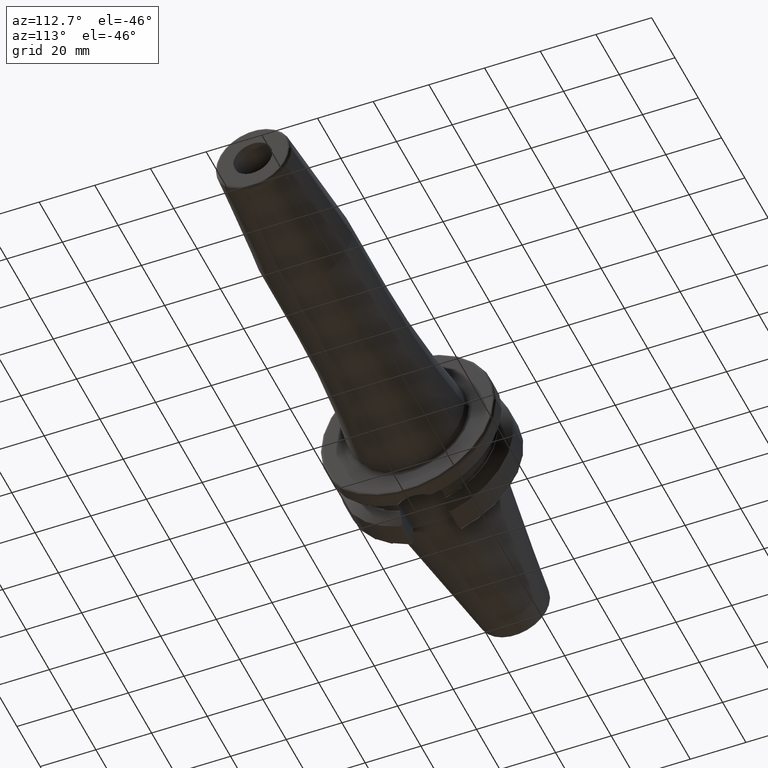
[diagram: clean part render]
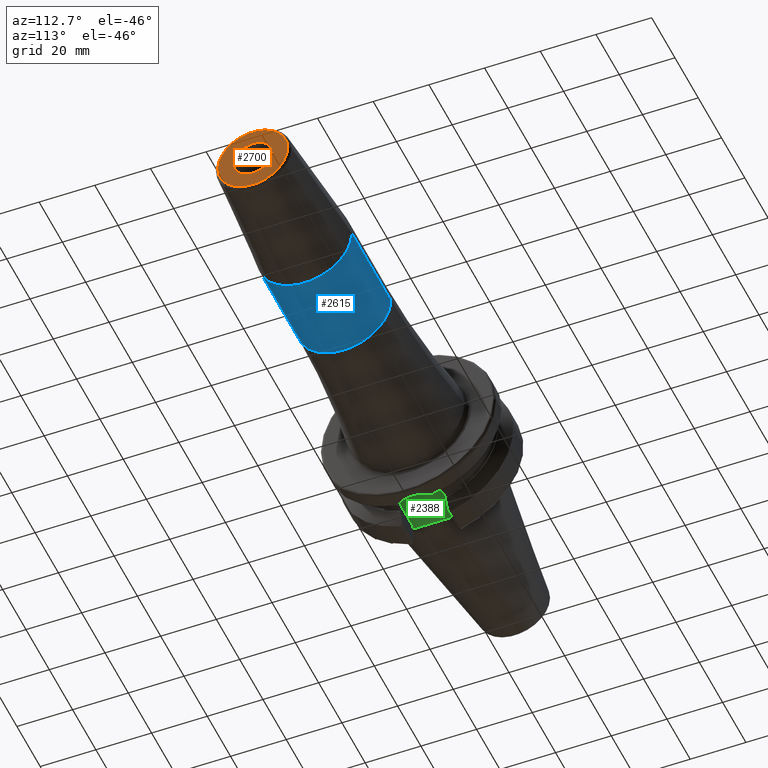
[diagram: same view with three faces highlighted in distinct colors, each labeled with its STEP entity id]
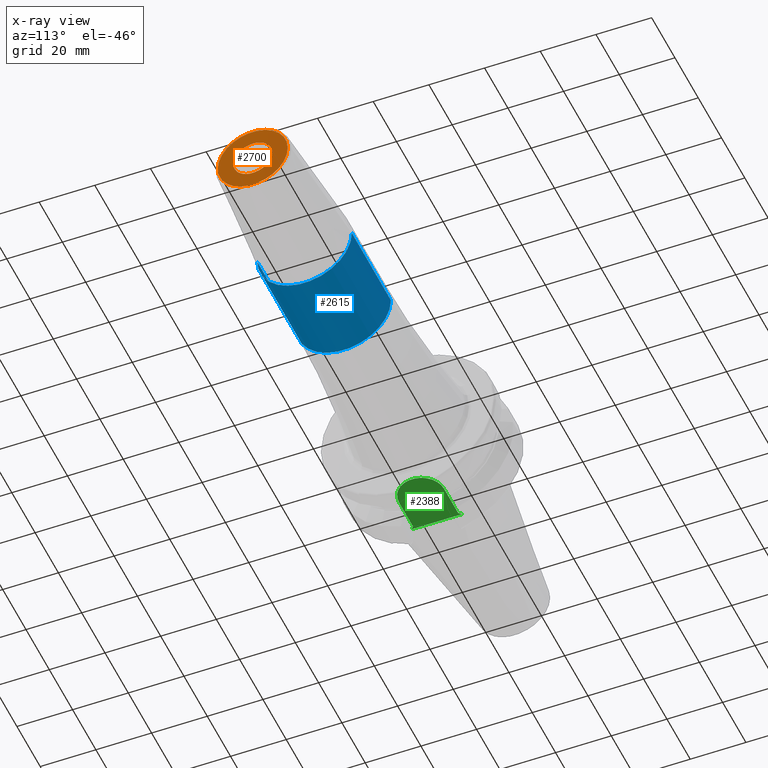
[diagram: x-ray of the same camera — body ghosted, the three highlighted faces saturated]
A machine part, auxiliary view with three faces highlighted in distinct colors.
The next image is the same camera in x-ray (body ghosted, the three faces saturated) — at least one of them is partly hidden behind the body in this view.
Their STEP definitions:

[orange] entity #2700 — the highlighted planar face has unit normal (1, 0, 0).
#932=CARTESIAN_POINT('',(1.6E2,0.E0,0.E0));
#933=DIRECTION('',(-1.E0,0.E0,0.E0));
#934=DIRECTION('',(0.E0,1.E0,0.E0));
#935=AXIS2_PLACEMENT_3D('',#932,#933,#934);
#937=CARTESIAN_POINT('',(1.6E2,0.E0,0.E0));
#938=DIRECTION('',(-1.E0,0.E0,0.E0));
#939=DIRECTION('',(0.E0,-1.E0,0.E0));
#940=AXIS2_PLACEMENT_3D('',#937,#938,#939);
#942=CARTESIAN_POINT('',(1.6E2,0.E0,0.E0));
#943=DIRECTION('',(1.E0,0.E0,0.E0));
#944=DIRECTION('',(0.E0,1.E0,0.E0));
#945=AXIS2_PLACEMENT_3D('',#942,#943,#944);
#947=CARTESIAN_POINT('',(1.6E2,0.E0,0.E0));
#948=DIRECTION('',(1.E0,0.E0,0.E0));
#949=DIRECTION('',(0.E0,-1.E0,0.E0));
#950=AXIS2_PLACEMENT_3D('',#947,#948,#949);
#1417=CARTESIAN_POINT('',(1.6E2,7.E0,0.E0));
#1418=VERTEX_POINT('',#1417);
#1419=CARTESIAN_POINT('',(1.6E2,-7.E0,0.E0));
#1420=VERTEX_POINT('',#1419);
#1429=CARTESIAN_POINT('',(1.6E2,1.257560950834E1,0.E0));
#1430=CARTESIAN_POINT('',(1.6E2,-1.257560950834E1,0.E0));
#1431=VERTEX_POINT('',#1429);
#1432=VERTEX_POINT('',#1430);
#2685=CARTESIAN_POINT('',(1.6E2,0.E0,0.E0));
#2686=DIRECTION('',(1.E0,0.E0,0.E0));
#2687=DIRECTION('',(0.E0,-1.E0,0.E0));
#2688=AXIS2_PLACEMENT_3D('',#2685,#2686,#2687);
#2689=PLANE('',#2688);
#2690=ORIENTED_EDGE('',*,*,#2667,.T.);
#2691=ORIENTED_EDGE('',*,*,#2652,.T.);
#2692=EDGE_LOOP('',(#2690,#2691));
#2693=FACE_OUTER_BOUND('',#2692,.F.);
#2695=ORIENTED_EDGE('',*,*,#2694,.T.);
#2697=ORIENTED_EDGE('',*,*,#2696,.T.);
#2698=EDGE_LOOP('',(#2695,#2697));
#2699=FACE_BOUND('',#2698,.F.);
#2700=ADVANCED_FACE('',(#2693,#2699),#2689,.T.);
#936=CIRCLE('',#935,1.257560950834E1);
#941=CIRCLE('',#940,1.257560950834E1);
#946=CIRCLE('',#945,7.E0);
#951=CIRCLE('',#950,7.E0);
#2652=EDGE_CURVE('',#1432,#1431,#941,.T.);
#2667=EDGE_CURVE('',#1431,#1432,#936,.T.);
#2694=EDGE_CURVE('',#1418,#1420,#946,.T.);
#2696=EDGE_CURVE('',#1420,#1418,#951,.T.);

[blue] entity #2615 — the highlighted cylindrical surface (partial cylindrical patch) has radius 17 mm, axis along (1, 0, 0).
#876=CARTESIAN_POINT('',(8.2E1,0.E0,0.E0));
#877=DIRECTION('',(1.E0,0.E0,0.E0));
#878=DIRECTION('',(0.E0,-1.E0,0.E0));
#879=AXIS2_PLACEMENT_3D('',#876,#877,#878);
#881=DIRECTION('',(-1.E0,0.E0,0.E0));
#882=VECTOR('',#881,3.352828342339E1);
#883=CARTESIAN_POINT('',(1.155282834234E2,-1.7E1,0.E0));
#884=LINE('',#883,#882);
#885=CARTESIAN_POINT('',(1.155282834234E2,0.E0,0.E0));
#886=DIRECTION('',(-1.E0,0.E0,0.E0));
#887=DIRECTION('',(0.E0,1.E0,0.E0));
#888=AXIS2_PLACEMENT_3D('',#885,#886,#887);
#890=DIRECTION('',(-1.E0,0.E0,0.E0));
#891=VECTOR('',#890,3.352828342339E1);
#892=CARTESIAN_POINT('',(1.155282834234E2,1.7E1,0.E0));
#893=LINE('',#892,#891);
#1421=CARTESIAN_POINT('',(1.155282834234E2,1.7E1,0.E0));
#1422=CARTESIAN_POINT('',(1.155282834234E2,-1.7E1,0.E0));
#1423=VERTEX_POINT('',#1421);
#1424=VERTEX_POINT('',#1422);
#1433=CARTESIAN_POINT('',(8.2E1,1.7E1,0.E0));
#1434=CARTESIAN_POINT('',(8.2E1,-1.7E1,0.E0));
#1435=VERTEX_POINT('',#1433);
#1436=VERTEX_POINT('',#1434);
#2601=CARTESIAN_POINT('',(2.035E1,0.E0,0.E0));
#2602=DIRECTION('',(1.E0,0.E0,0.E0));
#2603=DIRECTION('',(0.E0,-1.E0,0.E0));
#2604=AXIS2_PLACEMENT_3D('',#2601,#2602,#2603);
#2605=CYLINDRICAL_SURFACE('',#2604,1.7E1);
#2606=ORIENTED_EDGE('',*,*,#2595,.F.);
#2608=ORIENTED_EDGE('',*,*,#2607,.F.);
#2610=ORIENTED_EDGE('',*,*,#2609,.F.);
#2612=ORIENTED_EDGE('',*,*,#2611,.T.);
#2613=EDGE_LOOP('',(#2606,#2608,#2610,#2612));
#2614=FACE_OUTER_BOUND('',#2613,.F.);
#2615=ADVANCED_FACE('',(#2614),#2605,.T.);
#880=CIRCLE('',#879,1.7E1);
#889=CIRCLE('',#888,1.7E1);
#2595=EDGE_CURVE('',#1436,#1435,#880,.T.);
#2607=EDGE_CURVE('',#1424,#1436,#884,.T.);
#2609=EDGE_CURVE('',#1423,#1424,#889,.T.);
#2611=EDGE_CURVE('',#1423,#1435,#893,.T.);

[green] entity #2388 — the highlighted planar face has unit normal (0, 0, 1).
#116=CARTESIAN_POINT('',(2.E0,4.388977671395E0,-2.245E1));
#117=CARTESIAN_POINT('',(2.E0,3.970864393606E0,-2.245E1));
#118=CARTESIAN_POINT('',(1.981114905491E0,3.134790252882E0,-2.245E1));
#119=CARTESIAN_POINT('',(1.935909306664E0,1.881114481695E0,-2.245E1));
#120=CARTESIAN_POINT('',(1.903922826087E0,6.271978198695E-1,-2.245E1));
#121=CARTESIAN_POINT('',(1.903921553157E0,-6.271174199701E-1,-2.245E1));
#122=CARTESIAN_POINT('',(1.935907277484E0,-1.881058975901E0,-2.245E1));
#123=CARTESIAN_POINT('',(1.981114329553E0,-3.134769380598E0,-2.245E1));
#124=CARTESIAN_POINT('',(2.E0,-3.970858027266E0,-2.245E1));
#125=CARTESIAN_POINT('',(2.E0,-4.388977671395E0,-2.245E1));
#147=DIRECTION('',(7.071067811865E-1,-7.071067811865E-1,0.E0));
#148=VECTOR('',#147,1.414213562373E0);
#149=CARTESIAN_POINT('',(2.E0,9.095E0,-2.245E1));
#150=LINE('',#149,#148);
#738=DIRECTION('',(-7.071067811865E-1,-7.071067811865E-1,0.E0));
#739=VECTOR('',#738,1.414213562373E0);
#740=CARTESIAN_POINT('',(3.E0,-8.095E0,-2.245E1));
#741=LINE('',#740,#739);
#742=DIRECTION('',(-1.E0,0.E0,0.E0));
#743=VECTOR('',#742,1.2155E1);
#744=CARTESIAN_POINT('',(1.5155E1,8.095E0,-2.245E1));
#745=LINE('',#744,#743);
#746=DIRECTION('',(0.E0,-1.E0,0.E0));
#747=VECTOR('',#746,4.706022328605E0);
#748=CARTESIAN_POINT('',(2.E0,9.095E0,-2.245E1));
#749=LINE('',#748,#747);
#750=DIRECTION('',(0.E0,-1.E0,0.E0));
#751=VECTOR('',#750,4.706022328605E0);
#752=CARTESIAN_POINT('',(2.E0,-4.388977671395E0,-2.245E1));
#753=LINE('',#752,#751);
#754=DIRECTION('',(1.E0,0.E0,0.E0));
#755=VECTOR('',#754,1.2155E1);
#756=CARTESIAN_POINT('',(3.E0,-8.095E0,-2.245E1));
#757=LINE('',#756,#755);
#758=CARTESIAN_POINT('',(1.5155E1,0.E0,-2.245E1));
#759=DIRECTION('',(0.E0,0.E0,1.E0));
#760=DIRECTION('',(0.E0,-1.E0,0.E0));
#761=AXIS2_PLACEMENT_3D('',#758,#759,#760);
#1336=CARTESIAN_POINT('',(1.5155E1,-8.095E0,-2.245E1));
#1337=CARTESIAN_POINT('',(1.5155E1,8.095E0,-2.245E1));
#1338=VERTEX_POINT('',#1336);
#1339=VERTEX_POINT('',#1337);
#1340=CARTESIAN_POINT('',(2.E0,4.388977671395E0,-2.245E1));
#1341=VERTEX_POINT('',#1340);
#1342=CARTESIAN_POINT('',(2.E0,-4.388977671395E0,-2.245E1));
#1343=VERTEX_POINT('',#1342);
#1389=CARTESIAN_POINT('',(3.E0,8.095E0,-2.245E1));
#1391=VERTEX_POINT('',#1389);
#1393=CARTESIAN_POINT('',(2.E0,9.095E0,-2.245E1));
#1395=VERTEX_POINT('',#1393);
#1399=CARTESIAN_POINT('',(2.E0,-9.095E0,-2.245E1));
#1400=VERTEX_POINT('',#1399);
#1401=CARTESIAN_POINT('',(3.E0,-8.095E0,-2.245E1));
#1403=VERTEX_POINT('',#1401);
#2373=CARTESIAN_POINT('',(0.E0,0.E0,-2.245E1));
#2374=DIRECTION('',(0.E0,0.E0,1.E0));
#2375=DIRECTION('',(1.E0,0.E0,0.E0));
#2376=AXIS2_PLACEMENT_3D('',#2373,#2374,#2375);
#2377=PLANE('',#2376);
#2378=ORIENTED_EDGE('',*,*,#1665,.T.);
#2379=ORIENTED_EDGE('',*,*,#1646,.F.);
#2380=ORIENTED_EDGE('',*,*,#1610,.T.);
#2381=ORIENTED_EDGE('',*,*,#1589,.T.);
#2382=ORIENTED_EDGE('',*,*,#1622,.T.);
#2383=ORIENTED_EDGE('',*,*,#2368,.F.);
#2384=ORIENTED_EDGE('',*,*,#1820,.T.);
#2385=ORIENTED_EDGE('',*,*,#1914,.T.);
#2386=EDGE_LOOP('',(#2378,#2379,#2380,#2381,#2382,#2383,#2384,#2385));
#2387=FACE_OUTER_BOUND('',#2386,.F.);
#2388=ADVANCED_FACE('',(#2387),#2377,.F.);
#126=B_SPLINE_CURVE_WITH_KNOTS('',3,(#116,#117,#118,#119,#120,#121,#122,#123,
#124,#125),.UNSPECIFIED.,.F.,.F.,(4,1,1,1,1,1,1,4),(0.E0,1.428571428571E-1,
2.857142857143E-1,4.285714285714E-1,5.714285714286E-1,7.142857142857E-1,
8.571428571429E-1,1.E0),.UNSPECIFIED.);
#762=CIRCLE('',#761,8.095E0);
#1589=EDGE_CURVE('',#1341,#1343,#126,.T.);
#1610=EDGE_CURVE('',#1395,#1341,#749,.T.);
#1622=EDGE_CURVE('',#1343,#1400,#753,.T.);
#1646=EDGE_CURVE('',#1395,#1391,#150,.T.);
#1665=EDGE_CURVE('',#1339,#1391,#745,.T.);
#1820=EDGE_CURVE('',#1403,#1338,#757,.T.);
#1914=EDGE_CURVE('',#1338,#1339,#762,.T.);
#2368=EDGE_CURVE('',#1403,#1400,#741,.T.);